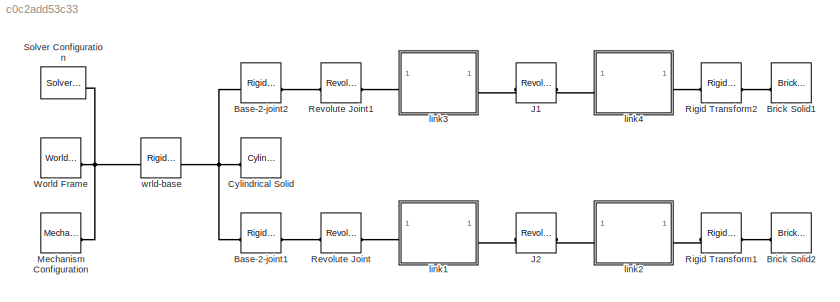
MODEL slx_c0c2add53c33
KIND model
CONFIG AbsTol = auto
CONFIG EnableMultiTasking = off
CONFIG FixedStep = auto
CONFIG MaxStep = auto
CONFIG MinStep = auto
CONFIG RelTol = 1e-3
CONFIG SampleTimeConstraint = Unconstrained
CONFIG SolverName = VariableStepAuto
CONFIG StartTime = 0.0
CONFIG StopTime = 1
BLOCK [Reference] Base-2-joint1  REF=sm_lib/Frames and
Transforms/Rigid
Transform
  SourceBlock = sm_lib/Frames and\nTransforms/Rigid\nTransform
  SourceType = Rigid\nTransform
BLOCK [Reference] Base-2-joint2  REF=sm_lib/Frames and
Transforms/Rigid
Transform
  SourceBlock = sm_lib/Frames and\nTransforms/Rigid\nTransform
  SourceType = Rigid\nTransform
BLOCK [Reference] Brick Solid1  REF=sm_lib/Body Elements/Brick Solid
  SourceBlock = sm_lib/Body Elements/Brick Solid
  SourceType = Brick Solid
BLOCK [Reference] Brick Solid2  REF=sm_lib/Body Elements/Brick Solid
  SourceBlock = sm_lib/Body Elements/Brick Solid
  SourceType = Brick Solid
BLOCK [Reference] Cylindrical Solid  REF=sm_lib/Body Elements/Cylindrical Solid
  SourceBlock = sm_lib/Body Elements/Cylindrical Solid
  SourceType = Cylindrical Solid
BLOCK [Reference] J1  REF=sm_lib/Joints/Revolute Joint
  SourceBlock = sm_lib/Joints/Revolute Joint
  SourceType = Revolute Joint
BLOCK [Reference] J2  REF=sm_lib/Joints/Revolute Joint
  SourceBlock = sm_lib/Joints/Revolute Joint
  SourceType = Revolute Joint
BLOCK [Reference] Mechanism Configuration  REF=sm_lib/Utilities/Mechanism
Configuration
  SourceBlock = sm_lib/Utilities/Mechanism\nConfiguration
  SourceType = Mechanism\nConfiguration
BLOCK [Reference] Revolute Joint  REF=sm_lib/Joints/Revolute Joint
  SourceBlock = sm_lib/Joints/Revolute Joint
  SourceType = Revolute Joint
BLOCK [Reference] Revolute Joint1  REF=sm_lib/Joints/Revolute Joint
  SourceBlock = sm_lib/Joints/Revolute Joint
  SourceType = Revolute Joint
BLOCK [Reference] Rigid Transform1  REF=sm_lib/Frames and
Transforms/Rigid
Transform
  SourceBlock = sm_lib/Frames and\nTransforms/Rigid\nTransform
  SourceType = Rigid\nTransform
BLOCK [Reference] Rigid Transform2  REF=sm_lib/Frames and
Transforms/Rigid
Transform
  SourceBlock = sm_lib/Frames and\nTransforms/Rigid\nTransform
  SourceType = Rigid\nTransform
BLOCK [Reference] Solver Configuration  REF=nesl_utility/Solver
Configuration
  SourceBlock = nesl_utility/Solver\nConfiguration
  SourceType = Solver\nConfiguration
BLOCK [Reference] World Frame  REF=sm_lib/Frames and
Transforms/World Frame
  SourceBlock = sm_lib/Frames and\nTransforms/World Frame
  SourceType = World Frame
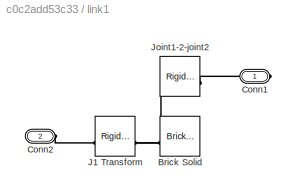
BLOCK [SubSystem] link1
BLOCK [Reference] link1/Brick Solid  REF=sm_lib/Body Elements/Brick Solid
  SourceBlock = sm_lib/Body Elements/Brick Solid
  SourceType = Brick Solid
BLOCK [PMIOPort] link1/Conn1
  Side = Right
BLOCK [PMIOPort] link1/Conn2
  Port = 2
  Side = Left
BLOCK [Reference] link1/J1 Transform  REF=sm_lib/Frames and
Transforms/Rigid
Transform
  SourceBlock = sm_lib/Frames and\nTransforms/Rigid\nTransform
  SourceType = Rigid\nTransform
BLOCK [Reference] link1/Joint1-2-joint2  REF=sm_lib/Frames and
Transforms/Rigid
Transform
  SourceBlock = sm_lib/Frames and\nTransforms/Rigid\nTransform
  SourceType = Rigid\nTransform
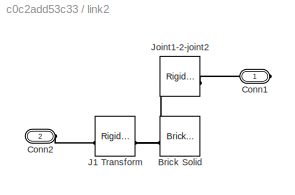
BLOCK [SubSystem] link2
BLOCK [Reference] link2/Brick Solid  REF=sm_lib/Body Elements/Brick Solid
  SourceBlock = sm_lib/Body Elements/Brick Solid
  SourceType = Brick Solid
BLOCK [PMIOPort] link2/Conn1
  Side = Right
BLOCK [PMIOPort] link2/Conn2
  Port = 2
  Side = Left
BLOCK [Reference] link2/J1 Transform  REF=sm_lib/Frames and
Transforms/Rigid
Transform
  SourceBlock = sm_lib/Frames and\nTransforms/Rigid\nTransform
  SourceType = Rigid\nTransform
BLOCK [Reference] link2/Joint1-2-joint2  REF=sm_lib/Frames and
Transforms/Rigid
Transform
  SourceBlock = sm_lib/Frames and\nTransforms/Rigid\nTransform
  SourceType = Rigid\nTransform
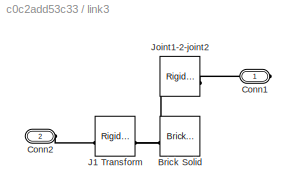
BLOCK [SubSystem] link3
BLOCK [Reference] link3/Brick Solid  REF=sm_lib/Body Elements/Brick Solid
  SourceBlock = sm_lib/Body Elements/Brick Solid
  SourceType = Brick Solid
BLOCK [PMIOPort] link3/Conn1
  Side = Right
BLOCK [PMIOPort] link3/Conn2
  Port = 2
  Side = Left
BLOCK [Reference] link3/J1 Transform  REF=sm_lib/Frames and
Transforms/Rigid
Transform
  SourceBlock = sm_lib/Frames and\nTransforms/Rigid\nTransform
  SourceType = Rigid\nTransform
BLOCK [Reference] link3/Joint1-2-joint2  REF=sm_lib/Frames and
Transforms/Rigid
Transform
  SourceBlock = sm_lib/Frames and\nTransforms/Rigid\nTransform
  SourceType = Rigid\nTransform
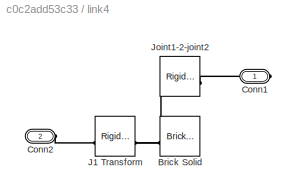
BLOCK [SubSystem] link4
BLOCK [Reference] link4/Brick Solid  REF=sm_lib/Body Elements/Brick Solid
  SourceBlock = sm_lib/Body Elements/Brick Solid
  SourceType = Brick Solid
BLOCK [PMIOPort] link4/Conn1
  Side = Right
BLOCK [PMIOPort] link4/Conn2
  Port = 2
  Side = Left
BLOCK [Reference] link4/J1 Transform  REF=sm_lib/Frames and
Transforms/Rigid
Transform
  SourceBlock = sm_lib/Frames and\nTransforms/Rigid\nTransform
  SourceType = Rigid\nTransform
BLOCK [Reference] link4/Joint1-2-joint2  REF=sm_lib/Frames and
Transforms/Rigid
Transform
  SourceBlock = sm_lib/Frames and\nTransforms/Rigid\nTransform
  SourceType = Rigid\nTransform
BLOCK [Reference] wrld-base  REF=sm_lib/Frames and
Transforms/Rigid
Transform
  SourceBlock = sm_lib/Frames and\nTransforms/Rigid\nTransform
  SourceType = Rigid\nTransform
PNET net1: Base-2-joint1:LConn1 -- Base-2-joint2:LConn1 -- Cylindrical Solid:RConn1 -- wrld-base:RConn1
PLINE Base-2-joint1:RConn1 -- Revolute Joint:LConn1
PLINE Base-2-joint2:RConn1 -- Revolute Joint1:LConn1
PLINE Brick Solid1:RConn1 -- Rigid Transform2:RConn1
PLINE Brick Solid2:RConn1 -- Rigid Transform1:RConn1
PLINE J1:LConn1 -- link3:RConn1
PLINE J1:RConn1 -- link4:LConn1
PLINE J2:LConn1 -- link1:RConn1
PLINE J2:RConn1 -- link2:LConn1
PNET net2: Mechanism Configuration:RConn1 -- Solver Configuration:RConn1 -- World Frame:RConn1 -- wrld-base:LConn1
PLINE Revolute Joint1:RConn1 -- link3:LConn1
PLINE Revolute Joint:RConn1 -- link1:LConn1
PLINE Rigid Transform1:LConn1 -- link2:RConn1
PLINE Rigid Transform2:LConn1 -- link4:RConn1
PNET net3: link1/Brick Solid:RConn1 -- link1/J1 Transform:RConn1 -- link1/Joint1-2-joint2:LConn1
PLINE link1/Conn1:RConn1 -- link1/Joint1-2-joint2:RConn1
PLINE link1/Conn2:RConn1 -- link1/J1 Transform:LConn1
PNET net4: link2/Brick Solid:RConn1 -- link2/J1 Transform:RConn1 -- link2/Joint1-2-joint2:LConn1
PLINE link2/Conn1:RConn1 -- link2/Joint1-2-joint2:RConn1
PLINE link2/Conn2:RConn1 -- link2/J1 Transform:LConn1
PNET net5: link3/Brick Solid:RConn1 -- link3/J1 Transform:RConn1 -- link3/Joint1-2-joint2:LConn1
PLINE link3/Conn1:RConn1 -- link3/Joint1-2-joint2:RConn1
PLINE link3/Conn2:RConn1 -- link3/J1 Transform:LConn1
PNET net6: link4/Brick Solid:RConn1 -- link4/J1 Transform:RConn1 -- link4/Joint1-2-joint2:LConn1
PLINE link4/Conn1:RConn1 -- link4/Joint1-2-joint2:RConn1
PLINE link4/Conn2:RConn1 -- link4/J1 Transform:LConn1
note: PNET lines group multi-terminal physical nets as a canonical sorted terminal list (undirected conserving connections); 2-terminal nets keep the pairwise PLINE form
